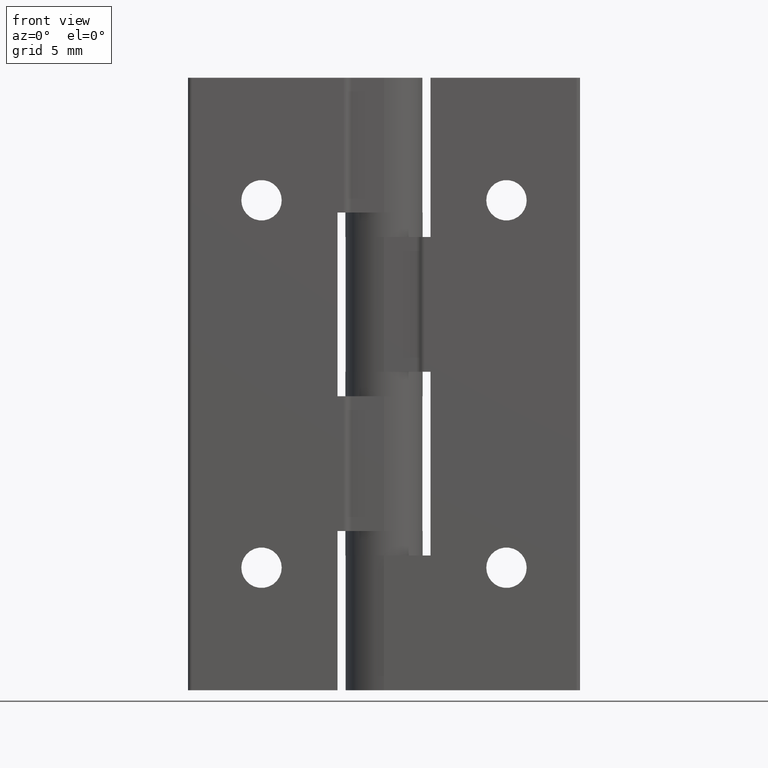
[diagram: clean part render]
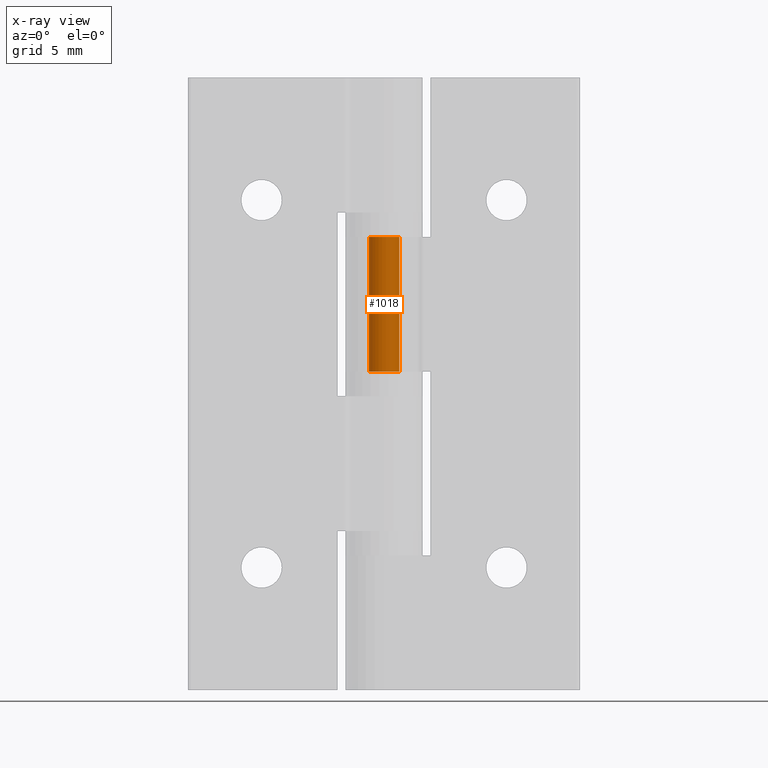
[diagram: x-ray — body ghosted, one internal face saturated and labeled with its STEP entity id]
A machine part, front view, then the same camera in x-ray: the body is ghosted and one INTERNAL B-rep face — a face not visible from any outside direction — is saturated and labeled: STEP entity #1018.
In plain terms, the highlighted cylindrical surface (bore or boss wall) has radius 1.25 mm, axis along (0, 0, -1).
Its self-contained STEP definition (entity closure, byte-faithful):
#76=CYLINDRICAL_SURFACE('',#1132,1.25);
#108=FACE_BOUND('',#303,.T.);
#144=CIRCLE('',#1094,1.25);
#150=CIRCLE('',#1103,1.25);
#217=FACE_OUTER_BOUND('',#302,.T.);
#302=EDGE_LOOP('',(#922));
#303=EDGE_LOOP('',(#923));
#519=VERTEX_POINT('',#1636);
#533=VERTEX_POINT('',#1669);
#632=EDGE_CURVE('',#519,#519,#144,.T.);
#648=EDGE_CURVE('',#533,#533,#150,.T.);
#922=ORIENTED_EDGE('',*,*,#632,.T.);
#923=ORIENTED_EDGE('',*,*,#648,.T.);
#1018=ADVANCED_FACE('',(#217,#108),#76,.F.);
#1094=AXIS2_PLACEMENT_3D('',#1637,#1326,#1327);
#1103=AXIS2_PLACEMENT_3D('',#1670,#1354,#1355);
#1132=AXIS2_PLACEMENT_3D('',#1735,#1430,#1431);
#1326=DIRECTION('center_axis',(-3.37258651702057E-16,0.,-1.));
#1327=DIRECTION('ref_axis',(-1.,0.,0.));
#1354=DIRECTION('center_axis',(2.69694108116868E-16,0.,1.));
#1355=DIRECTION('ref_axis',(-1.,0.,0.));
#1430=DIRECTION('center_axis',(0.,0.,-1.));
#1431=DIRECTION('ref_axis',(-1.,0.,0.));
#1636=CARTESIAN_POINT('',(1.25,-1.53080849893419E-16,-24.));
#1637=CARTESIAN_POINT('Origin',(0.,0.,-24.));
#1669=CARTESIAN_POINT('',(1.25,1.53080849893419E-16,-13.));
#1670=CARTESIAN_POINT('Origin',(0.,0.,-13.));
#1735=CARTESIAN_POINT('Origin',(0.,0.,0.));